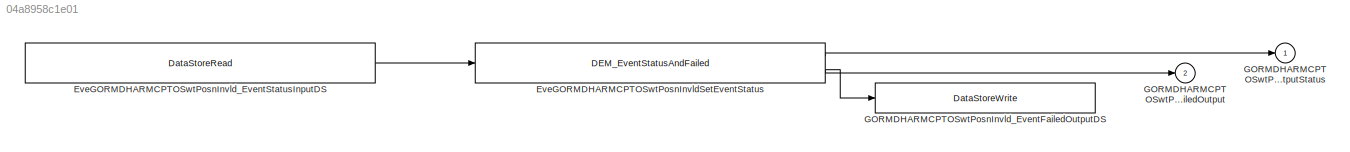
MODEL slx_04a8958c1e01
KIND model
CONFIG AbsTol = auto
CONFIG EnableMultiTasking = off
CONFIG FixedStep = auto
CONFIG MaxStep = auto
CONFIG MinStep = auto
CONFIG RelTol = 1e-3
CONFIG SampleTimeConstraint = Unconstrained
CONFIG Solver = VariableStepAuto
CONFIG SolverName = VariableStepAuto
CONFIG StartTime = 0.0
CONFIG StopTime = 10.0
BLOCK [Reference] EveGORMDHARMCPTOSwtPosnInvldSetEventStatus  REF=AUTOSAR_BSW_ClientServerLibrary/DEM_EventStatusAndFailed
  Ports = [1, 2]
  SourceBlock = AUTOSAR_BSW_ClientServerLibrary/DEM_EventStatusAndFailed
BLOCK [DataStoreRead] EveGORMDHARMCPTOSwtPosnInvld_EventStatusInputDS
  DataStoreName = EveGORMDHARMCPTOSwtPosnInvld_EventStatusInputDS
  Ports = [0, 1]
BLOCK [Outport] GORMDHARMCPTOSwtPosnInvldFailedOutput
  IconDisplay = Port number
  Port = 2
BLOCK [Outport] GORMDHARMCPTOSwtPosnInvldOutputStatus
  IconDisplay = Port number
BLOCK [DataStoreWrite] GORMDHARMCPTOSwtPosnInvld_EventFailedOutputDS
  DataStoreName = GORMDHARMCPTOSwtPosnInvld_EventFailedOutputDS
  Ports = [1]
LINE EveGORMDHARMCPTOSwtPosnInvldSetEventStatus:1 -> GORMDHARMCPTOSwtPosnInvldOutputStatus:1
NET EveGORMDHARMCPTOSwtPosnInvldSetEventStatus:2 -> GORMDHARMCPTOSwtPosnInvldFailedOutput:1, GORMDHARMCPTOSwtPosnInvld_EventFailedOutputDS:1
LINE EveGORMDHARMCPTOSwtPosnInvld_EventStatusInputDS:1 -> EveGORMDHARMCPTOSwtPosnInvldSetEventStatus:1
note: NET lines group one-source signal fan-out (src -> all destinations, sorted); 1:1 wires keep LINE
